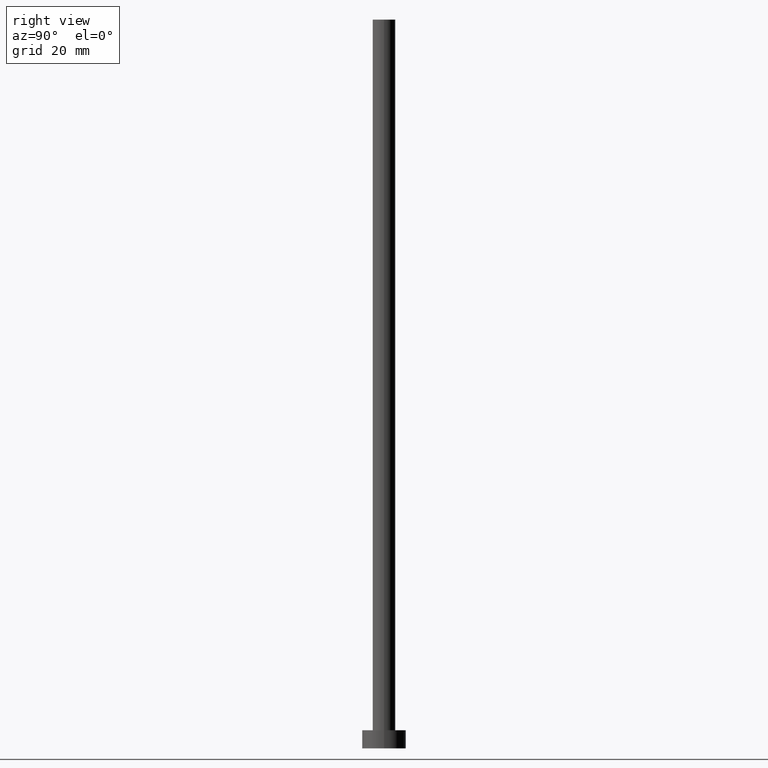
[diagram: clean part render]
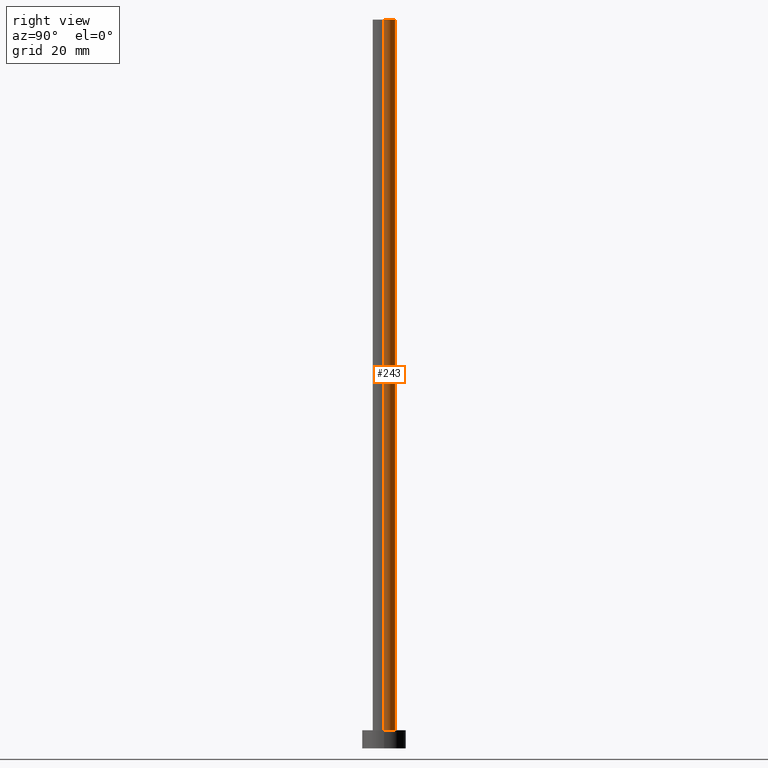
[diagram: same view with one face highlighted and labeled with its STEP entity id]
A machine part, right view. The second image highlights one B-rep face of the part: STEP entity #243.
In plain terms, the highlighted cylindrical surface (edge-blend (fillet) strip) has radius 3.1 mm, axis along (-0, -0, -1).
Its self-contained STEP definition (entity closure, byte-faithful):
#3 = VECTOR ( 'NONE', #184, 1000.000000000000000 ) ;
#17 = LINE ( 'NONE', #97, #3 ) ;
#19 = DIRECTION ( 'NONE',  ( -0.000000000000000000, -0.000000000000000000, -1.000000000000000000 ) ) ;
#27 = ORIENTED_EDGE ( 'NONE', *, *, #132, .T. ) ;
#45 = AXIS2_PLACEMENT_3D ( 'NONE', #110, #19, #148 ) ;
#61 = ORIENTED_EDGE ( 'NONE', *, *, #203, .F. ) ;
#62 = DIRECTION ( 'NONE',  ( 1.000000000000000000, 0.000000000000000000, 0.000000000000000000 ) ) ;
#66 = VERTEX_POINT ( 'NONE', #74 ) ;
#74 = CARTESIAN_POINT ( 'NONE',  ( 3.100000000000000089, 3.796405077356794918E-16, 200.0000000000000000 ) ) ;
#78 = LINE ( 'NONE', #153, #249 ) ;
#79 = VERTEX_POINT ( 'NONE', #164 ) ;
#82 = EDGE_CURVE ( 'NONE', #79, #124, #78, .T. ) ;
#84 = AXIS2_PLACEMENT_3D ( 'NONE', #85, #116, #62 ) ;
#85 = CARTESIAN_POINT ( 'NONE',  ( 0.000000000000000000, 0.000000000000000000, 200.0000000000000000 ) ) ;
#87 = AXIS2_PLACEMENT_3D ( 'NONE', #94, #227, #215 ) ;
#94 = CARTESIAN_POINT ( 'NONE',  ( 0.000000000000000000, 0.000000000000000000, 5.000000000000000000 ) ) ;
#97 = CARTESIAN_POINT ( 'NONE',  ( 3.100000000000000089, 3.796405077356794918E-16, 200.0000000000000000 ) ) ;
#109 = ORIENTED_EDGE ( 'NONE', *, *, #82, .F. ) ;
#110 = CARTESIAN_POINT ( 'NONE',  ( 0.000000000000000000, 0.000000000000000000, 200.0000000000000000 ) ) ;
#116 = DIRECTION ( 'NONE',  ( 0.000000000000000000, 0.000000000000000000, 1.000000000000000000 ) ) ;
#118 = EDGE_CURVE ( 'NONE', #121, #124, #123, .T. ) ;
#121 = VERTEX_POINT ( 'NONE', #212 ) ;
#123 = CIRCLE ( 'NONE', #87, 3.100000000000000089 ) ;
#124 = VERTEX_POINT ( 'NONE', #190 ) ;
#131 = FACE_OUTER_BOUND ( 'NONE', #224, .T. ) ;
#132 = EDGE_CURVE ( 'NONE', #66, #121, #17, .T. ) ;
#138 = CIRCLE ( 'NONE', #84, 3.100000000000000089 ) ;
#148 = DIRECTION ( 'NONE',  ( -1.000000000000000000, 0.000000000000000000, 0.000000000000000000 ) ) ;
#153 = CARTESIAN_POINT ( 'NONE',  ( -3.100000000000000089, 0.000000000000000000, 200.0000000000000000 ) ) ;
#164 = CARTESIAN_POINT ( 'NONE',  ( -3.100000000000000089, 0.000000000000000000, 200.0000000000000000 ) ) ;
#184 = DIRECTION ( 'NONE',  ( -0.000000000000000000, -0.000000000000000000, -1.000000000000000000 ) ) ;
#190 = CARTESIAN_POINT ( 'NONE',  ( -3.100000000000000089, 0.000000000000000000, 5.000000000000000000 ) ) ;
#193 = DIRECTION ( 'NONE',  ( -0.000000000000000000, -0.000000000000000000, -1.000000000000000000 ) ) ;
#203 = EDGE_CURVE ( 'NONE', #66, #79, #138, .T. ) ;
#212 = CARTESIAN_POINT ( 'NONE',  ( 3.100000000000000089, 3.796405077356794918E-16, 5.000000000000000000 ) ) ;
#215 = DIRECTION ( 'NONE',  ( 1.000000000000000000, 0.000000000000000000, 0.000000000000000000 ) ) ;
#216 = ORIENTED_EDGE ( 'NONE', *, *, #118, .T. ) ;
#224 = EDGE_LOOP ( 'NONE', ( #61, #27, #216, #109 ) ) ;
#226 = CYLINDRICAL_SURFACE ( 'NONE', #45, 3.100000000000000089 ) ;
#227 = DIRECTION ( 'NONE',  ( 0.000000000000000000, 0.000000000000000000, 1.000000000000000000 ) ) ;
#243 = ADVANCED_FACE ( 'NONE', ( #131 ), #226, .T. ) ;
#249 = VECTOR ( 'NONE', #193, 1000.000000000000000 ) ;